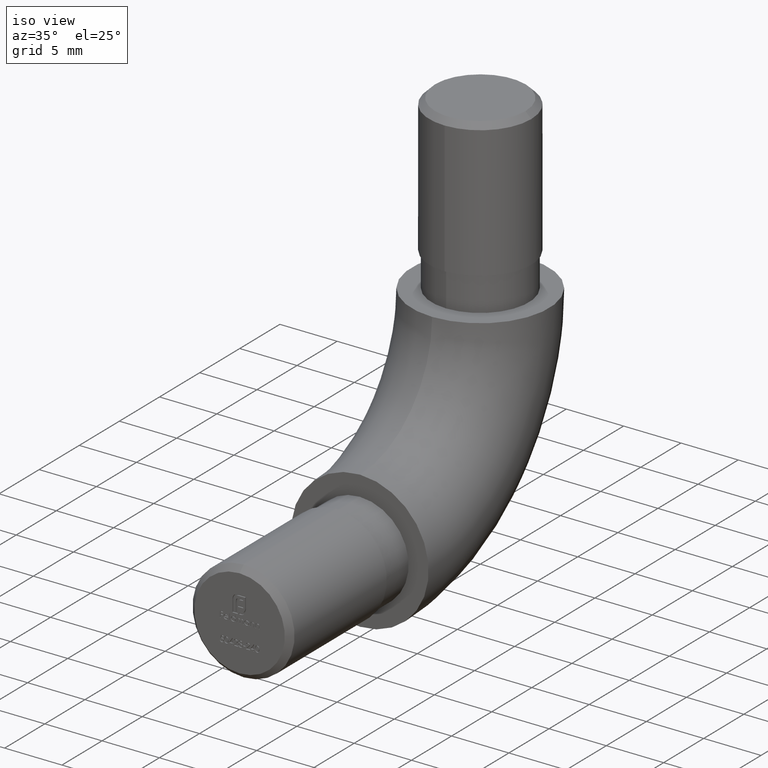
[diagram: clean part render]
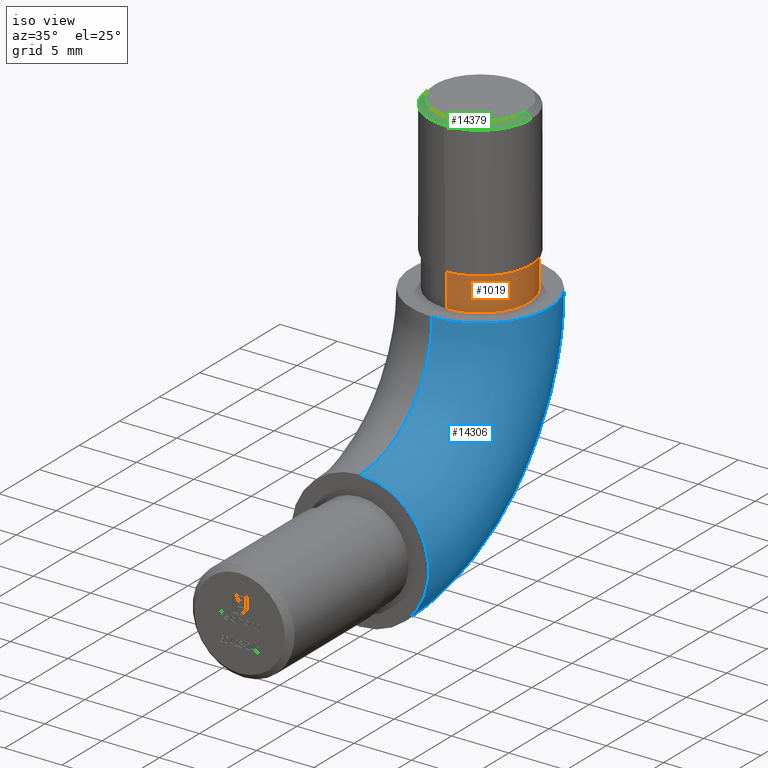
[diagram: same view with three faces highlighted in distinct colors, each labeled with its STEP entity id]
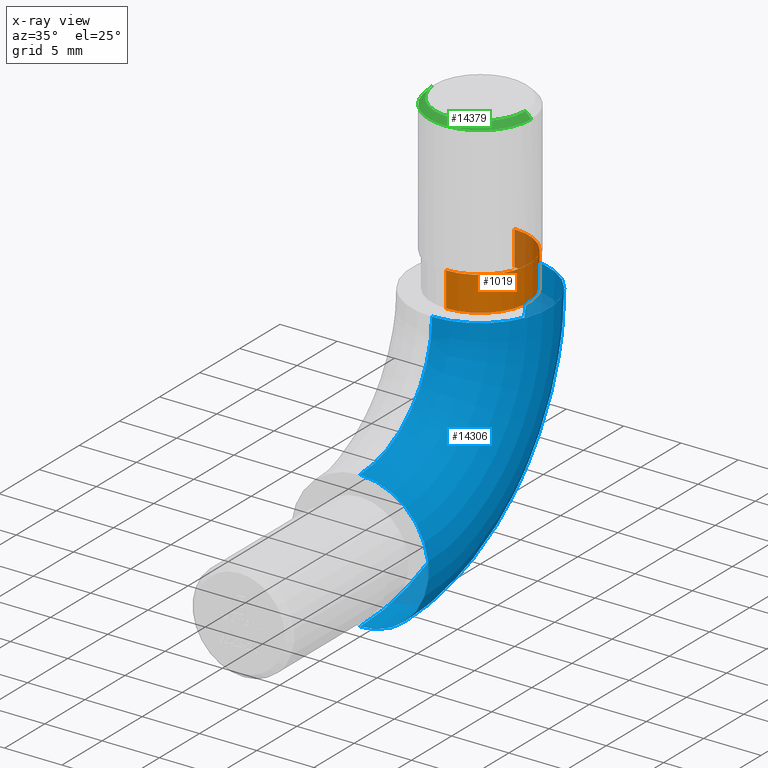
[diagram: x-ray of the same camera — body ghosted, the three highlighted faces saturated]
A machine part, iso view with three faces highlighted in distinct colors.
The next image is the same camera in x-ray (body ghosted, the three faces saturated) — at least one of them is partly hidden behind the body in this view.
Their STEP definitions:

[orange] entity #1019 — the highlighted cylindrical surface (partial cylindrical patch) has radius 4.25 mm, axis along (0, 0, -1).
#107 = ORIENTED_EDGE ( 'NONE', *, *, #11750, .F. ) ;
#213 = CARTESIAN_POINT ( 'NONE',  ( 0.000000000000000000, 10.74999999999999822, 15.00000000000000178 ) ) ;
#268 = FACE_OUTER_BOUND ( 'NONE', #1251, .T. ) ;
#1003 = AXIS2_PLACEMENT_3D ( 'NONE', #10124, #13673, #7750 ) ;
#1019 = ADVANCED_FACE ( 'NONE', ( #268 ), #14228, .T. ) ;
#1251 = EDGE_LOOP ( 'NONE', ( #107, #8707, #9648, #3696 ) ) ;
#2485 = DIRECTION ( 'NONE',  ( 0.000000000000000000, 9.957992501029596272E-17, -1.000000000000000000 ) ) ;
#2569 = VERTEX_POINT ( 'NONE', #3506 ) ;
#3159 = CIRCLE ( 'NONE', #6872, 4.250000000000001776 ) ;
#3440 = DIRECTION ( 'NONE',  ( -0.000000000000000000, -9.957992501029596272E-17, 1.000000000000000000 ) ) ;
#3506 = CARTESIAN_POINT ( 'NONE',  ( -5.204748896376251685E-16, 19.25000000000000355, 18.00000000000000355 ) ) ;
#3542 = CIRCLE ( 'NONE', #10947, 4.250000000000001776 ) ;
#3696 = ORIENTED_EDGE ( 'NONE', *, *, #12236, .T. ) ;
#3851 = VERTEX_POINT ( 'NONE', #12319 ) ;
#3941 = VECTOR ( 'NONE', #12248, 1000.000000000000000 ) ;
#4038 = DIRECTION ( 'NONE',  ( 0.000000000000000000, -1.000000000000000000, 0.000000000000000000 ) ) ;
#5614 = VERTEX_POINT ( 'NONE', #6497 ) ;
#6064 = CARTESIAN_POINT ( 'NONE',  ( 0.000000000000000000, 10.74999999999999822, 15.00000000000000178 ) ) ;
#6497 = CARTESIAN_POINT ( 'NONE',  ( -5.204748896376251685E-16, 19.25000000000000355, 15.00000000000000178 ) ) ;
#6555 = LINE ( 'NONE', #7569, #3941 ) ;
#6872 = AXIS2_PLACEMENT_3D ( 'NONE', #9901, #13446, #4038 ) ;
#7569 = CARTESIAN_POINT ( 'NONE',  ( -5.204748896376253657E-16, 19.25000000000000355, 15.00000000000000178 ) ) ;
#7750 = DIRECTION ( 'NONE',  ( 0.000000000000000000, -1.000000000000000000, 0.000000000000000000 ) ) ;
#8707 = ORIENTED_EDGE ( 'NONE', *, *, #14989, .F. ) ;
#9648 = ORIENTED_EDGE ( 'NONE', *, *, #14025, .T. ) ;
#9762 = LINE ( 'NONE', #6064, #11386 ) ;
#9901 = CARTESIAN_POINT ( 'NONE',  ( 0.000000000000000000, 15.00000000000000000, 15.00000000000000178 ) ) ;
#10124 = CARTESIAN_POINT ( 'NONE',  ( 0.000000000000000000, 15.00000000000000000, 15.00000000000000178 ) ) ;
#10585 = CARTESIAN_POINT ( 'NONE',  ( 0.000000000000000000, 15.00000000000000000, 18.00000000000000355 ) ) ;
#10947 = AXIS2_PLACEMENT_3D ( 'NONE', #10585, #3440, #11772 ) ;
#11386 = VECTOR ( 'NONE', #2485, 1000.000000000000000 ) ;
#11750 = EDGE_CURVE ( 'NONE', #2569, #5614, #6555, .T. ) ;
#11772 = DIRECTION ( 'NONE',  ( 0.000000000000000000, -1.000000000000000000, 0.000000000000000000 ) ) ;
#12236 = EDGE_CURVE ( 'NONE', #15030, #5614, #3159, .T. ) ;
#12248 = DIRECTION ( 'NONE',  ( 0.000000000000000000, 9.957992501029596272E-17, -1.000000000000000000 ) ) ;
#12319 = CARTESIAN_POINT ( 'NONE',  ( 0.000000000000000000, 10.74999999999999822, 18.00000000000000355 ) ) ;
#13446 = DIRECTION ( 'NONE',  ( -0.000000000000000000, -9.957992501029596272E-17, 1.000000000000000000 ) ) ;
#13673 = DIRECTION ( 'NONE',  ( 0.000000000000000000, 9.957992501029596272E-17, -1.000000000000000000 ) ) ;
#14025 = EDGE_CURVE ( 'NONE', #3851, #15030, #9762, .T. ) ;
#14228 = CYLINDRICAL_SURFACE ( 'NONE', #1003, 4.250000000000001776 ) ;
#14989 = EDGE_CURVE ( 'NONE', #3851, #2569, #3542, .T. ) ;
#15030 = VERTEX_POINT ( 'NONE', #213 ) ;

[blue] entity #14306 — the highlighted toroidal blend (fillet) surface has major radius 15 mm and minor (blend) radius 6 mm.
#1231 = CARTESIAN_POINT ( 'NONE',  ( 0.000000000000000000, 15.00000000000000000, 15.00000000000000178 ) ) ;
#1287 = AXIS2_PLACEMENT_3D ( 'NONE', #11703, #4604, #12910 ) ;
#1655 = DIRECTION ( 'NONE',  ( 0.000000000000000000, 0.000000000000000000, 1.000000000000000000 ) ) ;
#3204 = CARTESIAN_POINT ( 'NONE',  ( 0.000000000000000000, 0.000000000000000000, 5.999999999999999112 ) ) ;
#3595 = CIRCLE ( 'NONE', #1287, 9.000000000000001776 ) ;
#3729 = CARTESIAN_POINT ( 'NONE',  ( 0.000000000000000000, 20.99999999999999645, 15.00000000000000178 ) ) ;
#4163 = CARTESIAN_POINT ( 'NONE',  ( 0.000000000000000000, 0.000000000000000000, 15.00000000000000000 ) ) ;
#4604 = DIRECTION ( 'NONE',  ( 1.000000000000000000, 0.000000000000000000, 0.000000000000000000 ) ) ;
#4832 = ORIENTED_EDGE ( 'NONE', *, *, #10154, .T. ) ;
#4838 = AXIS2_PLACEMENT_3D ( 'NONE', #5243, #8954, #1655 ) ;
#5243 = CARTESIAN_POINT ( 'NONE',  ( 0.000000000000000000, 0.000000000000000000, 0.000000000000000000 ) ) ;
#5310 = CARTESIAN_POINT ( 'NONE',  ( 0.000000000000000000, 0.000000000000000000, -5.999999999999998224 ) ) ;
#5424 = DIRECTION ( 'NONE',  ( 0.000000000000000000, 0.000000000000000000, -1.000000000000000000 ) ) ;
#5433 = CIRCLE ( 'NONE', #15158, 20.99999999999999645 ) ;
#5962 = DIRECTION ( 'NONE',  ( 0.000000000000000000, -1.156482317317871725E-16, 1.000000000000000000 ) ) ;
#6085 = VERTEX_POINT ( 'NONE', #3729 ) ;
#6088 = AXIS2_PLACEMENT_3D ( 'NONE', #1231, #5962, #14251 ) ;
#6483 = EDGE_CURVE ( 'NONE', #12219, #6085, #5433, .T. ) ;
#7155 = TOROIDAL_SURFACE ( 'NONE', #9696, 15.00000000000000000, 5.999999999999999112 ) ;
#7710 = FACE_OUTER_BOUND ( 'NONE', #12646, .T. ) ;
#8591 = VERTEX_POINT ( 'NONE', #15004 ) ;
#8954 = DIRECTION ( 'NONE',  ( 0.000000000000000000, 1.000000000000000000, 0.000000000000000000 ) ) ;
#9188 = EDGE_CURVE ( 'NONE', #11002, #8591, #3595, .T. ) ;
#9342 = DIRECTION ( 'NONE',  ( 1.000000000000000000, 0.000000000000000000, 0.000000000000000000 ) ) ;
#9696 = AXIS2_PLACEMENT_3D ( 'NONE', #14024, #9342, #10457 ) ;
#10026 = DIRECTION ( 'NONE',  ( 1.000000000000000000, 0.000000000000000000, 0.000000000000000000 ) ) ;
#10154 = EDGE_CURVE ( 'NONE', #11002, #12219, #12336, .T. ) ;
#10457 = DIRECTION ( 'NONE',  ( 0.000000000000000000, 0.000000000000000000, -1.000000000000000000 ) ) ;
#11002 = VERTEX_POINT ( 'NONE', #3204 ) ;
#11703 = CARTESIAN_POINT ( 'NONE',  ( -7.347880794884118750E-16, 0.000000000000000000, 15.00000000000000000 ) ) ;
#11712 = ORIENTED_EDGE ( 'NONE', *, *, #15164, .F. ) ;
#12219 = VERTEX_POINT ( 'NONE', #5310 ) ;
#12336 = CIRCLE ( 'NONE', #4838, 5.999999999999999112 ) ;
#12646 = EDGE_LOOP ( 'NONE', ( #4832, #15218, #11712, #14198 ) ) ;
#12910 = DIRECTION ( 'NONE',  ( 0.000000000000000000, 0.000000000000000000, -1.000000000000000000 ) ) ;
#13044 = CIRCLE ( 'NONE', #6088, 5.999999999999998224 ) ;
#14024 = CARTESIAN_POINT ( 'NONE',  ( 0.000000000000000000, 0.000000000000000000, 15.00000000000000000 ) ) ;
#14198 = ORIENTED_EDGE ( 'NONE', *, *, #9188, .F. ) ;
#14251 = DIRECTION ( 'NONE',  ( 0.000000000000000000, -1.000000000000000000, 0.000000000000000000 ) ) ;
#14306 = ADVANCED_FACE ( 'NONE', ( #7710 ), #7155, .T. ) ;
#15004 = CARTESIAN_POINT ( 'NONE',  ( 0.000000000000000000, 9.000000000000001776, 15.00000000000000178 ) ) ;
#15158 = AXIS2_PLACEMENT_3D ( 'NONE', #4163, #10026, #5424 ) ;
#15164 = EDGE_CURVE ( 'NONE', #8591, #6085, #13044, .T. ) ;
#15218 = ORIENTED_EDGE ( 'NONE', *, *, #6483, .T. ) ;

[green] entity #14379 — the highlighted conical surface has half-angle 45 deg.
#20 = DIRECTION ( 'NONE',  ( -1.000000000000000000, 0.000000000000000000, 0.000000000000000000 ) ) ;
#176 = CIRCLE ( 'NONE', #14561, 4.450000000000001066 ) ;
#356 = VERTEX_POINT ( 'NONE', #6113 ) ;
#386 = CARTESIAN_POINT ( 'NONE',  ( 3.949999999999986411, 14.99999999999999822, 30.00000000000000000 ) ) ;
#564 = CONICAL_SURFACE ( 'NONE', #13828, 3.949999999999986411, 0.7853981633974552734 ) ;
#1851 = ORIENTED_EDGE ( 'NONE', *, *, #5948, .F. ) ;
#1950 = ORIENTED_EDGE ( 'NONE', *, *, #5199, .F. ) ;
#3111 = VERTEX_POINT ( 'NONE', #11554 ) ;
#3569 = CARTESIAN_POINT ( 'NONE',  ( 0.000000000000000000, 14.99999999999999822, 30.00000000000000000 ) ) ;
#3651 = VERTEX_POINT ( 'NONE', #3961 ) ;
#3664 = EDGE_CURVE ( 'NONE', #5318, #3651, #11768, .T. ) ;
#3721 = DIRECTION ( 'NONE',  ( 0.000000000000000000, 0.000000000000000000, -1.000000000000000000 ) ) ;
#3961 = CARTESIAN_POINT ( 'NONE',  ( 4.450000000000001066, 14.99999999999999822, 29.49999999999999289 ) ) ;
#4166 = EDGE_CURVE ( 'NONE', #8767, #3111, #14188, .T. ) ;
#4216 = CARTESIAN_POINT ( 'NONE',  ( 0.000000000000000000, 14.99999999999999822, 30.00000000000000000 ) ) ;
#4277 = CARTESIAN_POINT ( 'NONE',  ( 0.000000000000000000, 10.54999999999999716, 29.49999999999999289 ) ) ;
#5199 = EDGE_CURVE ( 'NONE', #356, #5318, #13974, .T. ) ;
#5247 = ORIENTED_EDGE ( 'NONE', *, *, #3664, .F. ) ;
#5318 = VERTEX_POINT ( 'NONE', #11514 ) ;
#5456 = VECTOR ( 'NONE', #12382, 1000.000000000000000 ) ;
#5948 = EDGE_CURVE ( 'NONE', #3651, #8767, #176, .T. ) ;
#6113 = CARTESIAN_POINT ( 'NONE',  ( -3.949999999999986411, 14.99999999999999822, 30.00000000000000000 ) ) ;
#6602 = DIRECTION ( 'NONE',  ( 0.000000000000000000, 0.000000000000000000, -1.000000000000000000 ) ) ;
#8767 = VERTEX_POINT ( 'NONE', #4277 ) ;
#9124 = CARTESIAN_POINT ( 'NONE',  ( 0.000000000000000000, 14.99999999999999822, 29.49999999999999289 ) ) ;
#9964 = VECTOR ( 'NONE', #11025, 1000.000000000000000 ) ;
#10359 = EDGE_LOOP ( 'NONE', ( #5247, #1950, #15101, #11461, #1851 ) ) ;
#10420 = AXIS2_PLACEMENT_3D ( 'NONE', #4216, #11225, #12579 ) ;
#10470 = LINE ( 'NONE', #11335, #5456 ) ;
#10802 = CARTESIAN_POINT ( 'NONE',  ( 0.000000000000000000, 14.99999999999999822, 29.49999999999999289 ) ) ;
#11025 = DIRECTION ( 'NONE',  ( 0.7071067811865524577, 8.659560562354994488E-17, -0.7071067811865426878 ) ) ;
#11225 = DIRECTION ( 'NONE',  ( -0.000000000000000000, -9.957992501029596272E-17, 1.000000000000000000 ) ) ;
#11335 = CARTESIAN_POINT ( 'NONE',  ( -3.949999999999986411, 14.99999999999999822, 30.00000000000000000 ) ) ;
#11461 = ORIENTED_EDGE ( 'NONE', *, *, #4166, .F. ) ;
#11514 = CARTESIAN_POINT ( 'NONE',  ( 3.949999999999986411, 14.99999999999999822, 30.00000000000000000 ) ) ;
#11554 = CARTESIAN_POINT ( 'NONE',  ( -4.450000000000001066, 14.99999999999999822, 29.49999999999999289 ) ) ;
#11768 = LINE ( 'NONE', #386, #9964 ) ;
#11887 = DIRECTION ( 'NONE',  ( 0.000000000000000000, 0.000000000000000000, -1.000000000000000000 ) ) ;
#12202 = AXIS2_PLACEMENT_3D ( 'NONE', #10802, #3721, #14269 ) ;
#12382 = DIRECTION ( 'NONE',  ( -0.7071067811865524577, 0.000000000000000000, -0.7071067811865426878 ) ) ;
#12579 = DIRECTION ( 'NONE',  ( 0.000000000000000000, 1.000000000000000000, 0.000000000000000000 ) ) ;
#12614 = DIRECTION ( 'NONE',  ( -1.000000000000000000, 0.000000000000000000, 0.000000000000000000 ) ) ;
#13828 = AXIS2_PLACEMENT_3D ( 'NONE', #3569, #11887, #20 ) ;
#13974 = CIRCLE ( 'NONE', #10420, 3.949999999999986411 ) ;
#14172 = FACE_OUTER_BOUND ( 'NONE', #10359, .T. ) ;
#14188 = CIRCLE ( 'NONE', #12202, 4.450000000000001066 ) ;
#14209 = EDGE_CURVE ( 'NONE', #356, #3111, #10470, .T. ) ;
#14269 = DIRECTION ( 'NONE',  ( -1.000000000000000000, 0.000000000000000000, 0.000000000000000000 ) ) ;
#14379 = ADVANCED_FACE ( 'NONE', ( #14172 ), #564, .T. ) ;
#14561 = AXIS2_PLACEMENT_3D ( 'NONE', #9124, #6602, #12614 ) ;
#15101 = ORIENTED_EDGE ( 'NONE', *, *, #14209, .T. ) ;